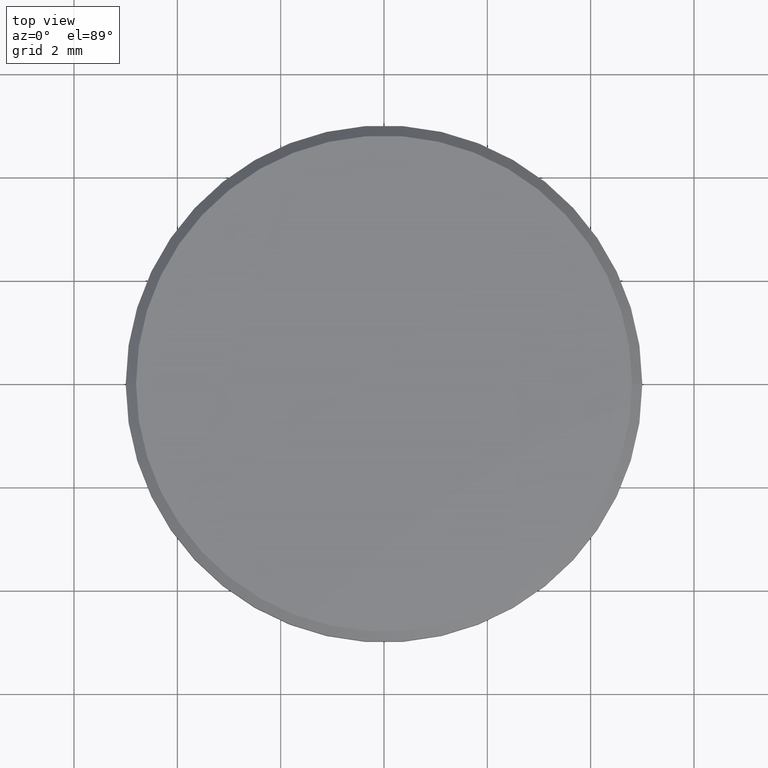
[diagram: clean part render]
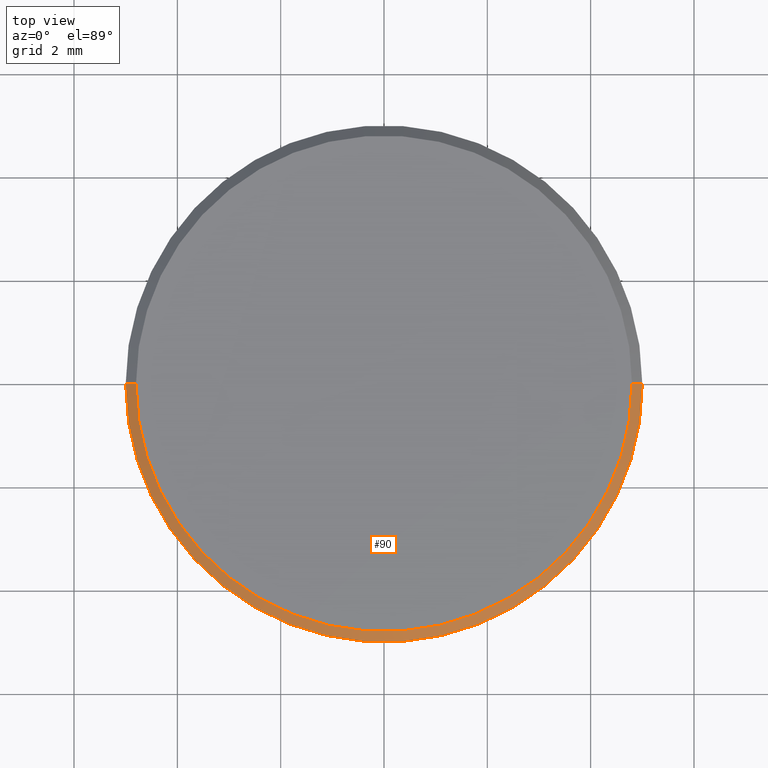
[diagram: same view with one face highlighted and labeled with its STEP entity id]
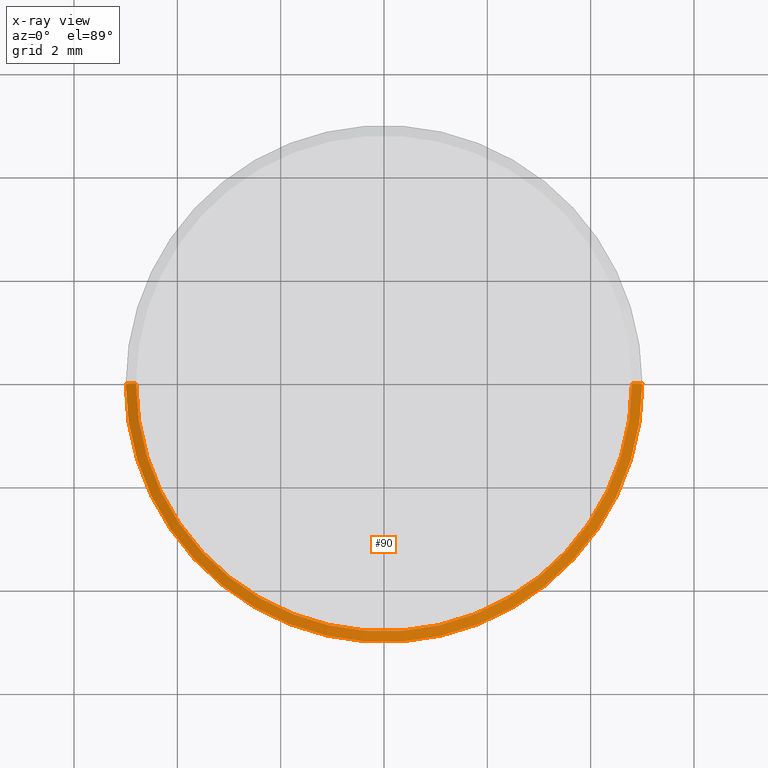
[diagram: x-ray of the same camera — body ghosted, the highlighted face saturated]
A machine part, top view. The second image highlights one B-rep face of the part: STEP entity #90.
The next image is the same camera in x-ray: the body ghosted, the highlighted face saturated — about 0% of this face is hidden behind the body in this view.
In plain terms, the highlighted conical surface has half-angle 45 deg.
Its self-contained STEP definition (entity closure, byte-faithful):
#20 = AXIS2_PLACEMENT_3D ( 'NONE', #79, #98, #36 ) ;
#26 = EDGE_CURVE ( 'NONE', #140, #31, #94, .T. ) ;
#28 = CARTESIAN_POINT ( 'NONE',  ( -4.800000000000002487, 0.000000000000000000, 1.000000000000000000 ) ) ;
#31 = VERTEX_POINT ( 'NONE', #169 ) ;
#36 = DIRECTION ( 'NONE',  ( 1.000000000000000000, 0.000000000000000000, 0.000000000000000000 ) ) ;
#46 = VERTEX_POINT ( 'NONE', #61 ) ;
#48 = EDGE_CURVE ( 'NONE', #46, #163, #121, .T. ) ;
#49 = ORIENTED_EDGE ( 'NONE', *, *, #102, .F. ) ;
#58 = DIRECTION ( 'NONE',  ( -1.000000000000000000, 0.000000000000000000, 0.000000000000000000 ) ) ;
#61 = CARTESIAN_POINT ( 'NONE',  ( -4.800000000000002487, 0.000000000000000000, 1.000000000000000000 ) ) ;
#62 = VECTOR ( 'NONE', #118, 1000.000000000000114 ) ;
#79 = CARTESIAN_POINT ( 'NONE',  ( 0.000000000000000000, 0.000000000000000000, 1.000000000000000000 ) ) ;
#89 = LINE ( 'NONE', #28, #62 ) ;
#90 = ADVANCED_FACE ( 'NONE', ( #192 ), #215, .T. ) ;
#91 = ORIENTED_EDGE ( 'NONE', *, *, #26, .F. ) ;
#94 = CIRCLE ( 'NONE', #230, 5.000000000000000000 ) ;
#98 = DIRECTION ( 'NONE',  ( 0.000000000000000000, 0.000000000000000000, 1.000000000000000000 ) ) ;
#99 = DIRECTION ( 'NONE',  ( 0.7071067811865460184, 8.659560562354913137E-17, -0.7071067811865489050 ) ) ;
#102 = EDGE_CURVE ( 'NONE', #163, #140, #209, .T. ) ;
#108 = ORIENTED_EDGE ( 'NONE', *, *, #48, .F. ) ;
#116 = CARTESIAN_POINT ( 'NONE',  ( 0.000000000000000000, 0.000000000000000000, 1.000000000000000000 ) ) ;
#117 = CARTESIAN_POINT ( 'NONE',  ( 4.800000000000002487, 6.000769315822031726E-16, 1.000000000000000000 ) ) ;
#118 = DIRECTION ( 'NONE',  ( -0.7071067811865460184, 0.000000000000000000, -0.7071067811865489050 ) ) ;
#121 = CIRCLE ( 'NONE', #20, 4.800000000000002487 ) ;
#126 = CARTESIAN_POINT ( 'NONE',  ( 0.000000000000000000, 0.000000000000000000, 0.8000000000000012657 ) ) ;
#140 = VERTEX_POINT ( 'NONE', #146 ) ;
#146 = CARTESIAN_POINT ( 'NONE',  ( 5.000000000000000000, 6.123233995736766282E-16, 0.8000000000000012657 ) ) ;
#148 = DIRECTION ( 'NONE',  ( 1.000000000000000000, 0.000000000000000000, 0.000000000000000000 ) ) ;
#150 = EDGE_CURVE ( 'NONE', #46, #31, #89, .T. ) ;
#163 = VERTEX_POINT ( 'NONE', #117 ) ;
#167 = DIRECTION ( 'NONE',  ( 0.000000000000000000, 0.000000000000000000, -1.000000000000000000 ) ) ;
#169 = CARTESIAN_POINT ( 'NONE',  ( -5.000000000000000000, 0.000000000000000000, 0.8000000000000012657 ) ) ;
#190 = VECTOR ( 'NONE', #99, 1000.000000000000114 ) ;
#192 = FACE_OUTER_BOUND ( 'NONE', #237, .T. ) ;
#208 = CARTESIAN_POINT ( 'NONE',  ( 4.800000000000002487, 5.878304635907297169E-16, 1.000000000000000000 ) ) ;
#209 = LINE ( 'NONE', #208, #190 ) ;
#215 = CONICAL_SURFACE ( 'NONE', #224, 4.800000000000002487, 0.7853981633974461696 ) ;
#224 = AXIS2_PLACEMENT_3D ( 'NONE', #116, #167, #58 ) ;
#227 = DIRECTION ( 'NONE',  ( 0.000000000000000000, 0.000000000000000000, -1.000000000000000000 ) ) ;
#230 = AXIS2_PLACEMENT_3D ( 'NONE', #126, #227, #148 ) ;
#237 = EDGE_LOOP ( 'NONE', ( #49, #108, #238, #91 ) ) ;
#238 = ORIENTED_EDGE ( 'NONE', *, *, #150, .T. ) ;